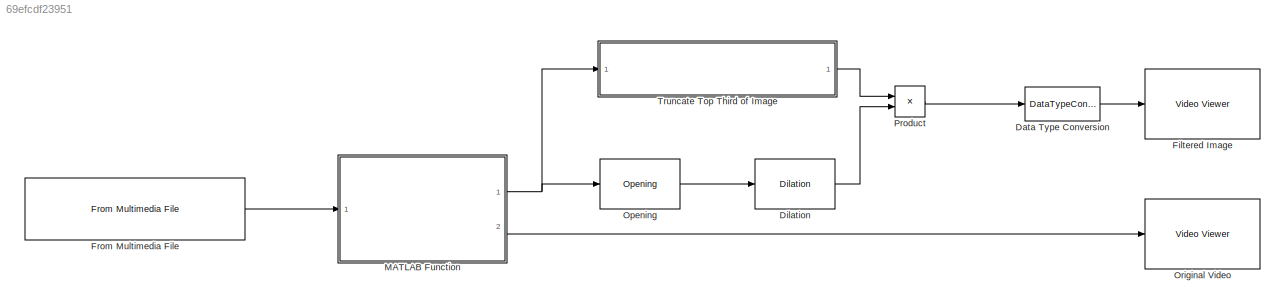
MODEL slx_69efcdf23951
KIND model
CONFIG AbsTol = auto
CONFIG FixedStep = auto
CONFIG MaxStep = auto
CONFIG MinStep = auto
CONFIG RelTol = 1e-3
CONFIG SampleTimeConstraint = Unconstrained
CONFIG Solver = ode45
CONFIG SolverMode = Auto
CONFIG SolverName = ode45
CONFIG StartTime = 0.0
CONFIG StopTime = 10.0
BLOCK [DataTypeConversion] Data Type Conversion
  OutDataTypeStr = boolean
  RndMeth = Floor
  SaturateOnIntegerOverflow = off
BLOCK [Reference] Dilation  REF=visionmorphops/Dilation
  Ports = [1, 1]
  SourceBlock = visionmorphops/Dilation
  SourceType = Dilation
  nhoodsrc = Specify via dialog
  strel = [1 1; 1 1]
BLOCK [Reference] Filtered Image  REF=visionsinks/Video Viewer
  AxisZoom = on
  DefaultConfigurationName = vipscopes.VideoViewerScopeCfg
  FigPos = [962 1037 958 929]
  OpenAtMdlStart = on
  Ports = [1]
  SourceBlock = visionsinks/Video Viewer
  SourceType = Video Viewer
  UserDataPersistent = on
  colormapValue = gray(256)
  imagePorts = One multidimensional signal
  inputType = Obsolete7b
  maxInputVal = 255
  minInputVal = 0
  specRange = off
  trueSizedOnce = off
  useColorMap = off
BLOCK [Reference] From Multimedia File  REF=dspvision/From Multimedia File
  Ports = [0, 1]
  SourceBlock = dspvision/From Multimedia File
  SourceType = From Multimedia File
  audioDataType = int16
  audioFrameSize = 1024
  colorVideoFormat = One multidimensional signal
  computeAudioFrameSize = off
  dataOrg = Column-major
  fourcc = RGB
  inheritSampleTime = on
  inputFilename = <path>
  isIntensityVideo = off
  loop = on
  noAudioOutput = off
  numPlays = inf
  outSamplingMode = Sample based
  outputEOF = off
  outputStreams = Video only
  userDefinedSampleTime = 1/30
  videoDataType = single
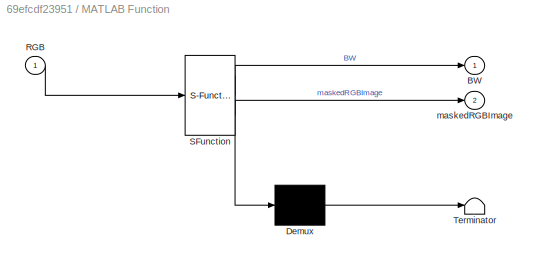
BLOCK [SubSystem] MATLAB Function
  ErrorFcn = Stateflow.Translate.translate
  PermitHierarchicalResolution = ExplicitOnly
  Ports = [1, 2]
  RequestExecContextInheritance = off
  SFBlockType = MATLAB Function
  TreatAsAtomicUnit = on
BLOCK [Demux] MATLAB Function/ Demux 
  Outputs = 1
  Ports = [1, 1]
BLOCK [S-Function] MATLAB Function/ SFunction 
  EnableBusSupport = on
  FunctionName = sf_sfun
  PortCounts = [1 3]
  Ports = [1, 3]
  Tag = Stateflow S-Function Simulink_threshold 2
BLOCK [Terminator] MATLAB Function/ Terminator 
BLOCK [Outport] MATLAB Function/BW
  IconDisplay = Port number
BLOCK [Inport] MATLAB Function/RGB
  IconDisplay = Port number
BLOCK [Outport] MATLAB Function/maskedRGBImage
  IconDisplay = Port number
  Port = 2
BLOCK [Reference] Opening  REF=visionmorphops/Opening
  Ports = [1, 1]
  SourceBlock = visionmorphops/Opening
  SourceType = Opening
  nhoodsrc = Specify via dialog
  strel = strel('disk', 1)
BLOCK [Reference] Original Video  REF=visionsinks/Video Viewer
  AxisZoom = on
  DefaultConfigurationName = vipscopes.VideoViewerScopeCfg
  FigPos = [2 1037 958 929]
  OpenAtMdlStart = on
  Ports = [1]
  SourceBlock = visionsinks/Video Viewer
  SourceType = Video Viewer
  UserDataPersistent = on
  colormapValue = jet(256)
  imagePorts = One multidimensional signal
  inputType = Obsolete7b
  maxInputVal = 255
  minInputVal = 0
  specRange = off
  trueSizedOnce = off
  useColorMap = off
BLOCK [Product] Product
  InputSameDT = off
  OutDataTypeStr = Inherit: Inherit via internal rule
  Ports = [2, 1]
  RndMeth = Floor
  SaturateOnIntegerOverflow = off
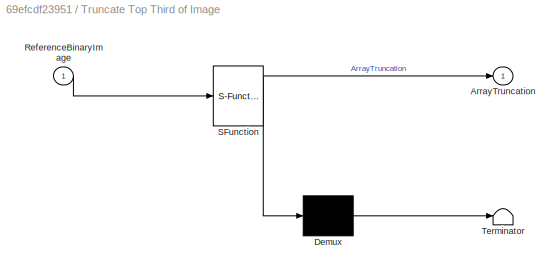
BLOCK [SubSystem] Truncate Top Third of Image
  ErrorFcn = Stateflow.Translate.translate
  PermitHierarchicalResolution = ExplicitOnly
  Ports = [1, 1]
  RequestExecContextInheritance = off
  SFBlockType = MATLAB Function
  TreatAsAtomicUnit = on
BLOCK [Demux] Truncate Top Third of Image/ Demux 
  Outputs = 1
  Ports = [1, 1]
BLOCK [S-Function] Truncate Top Third of Image/ SFunction 
  EnableBusSupport = on
  FunctionName = sf_sfun
  PortCounts = [1 2]
  Ports = [1, 2]
  Tag = Stateflow S-Function Simulink_threshold 1
BLOCK [Terminator] Truncate Top Third of Image/ Terminator 
BLOCK [Outport] Truncate Top Third of Image/ArrayTruncation
  IconDisplay = Port number
BLOCK [Inport] Truncate Top Third of Image/ReferenceBinaryImage
  IconDisplay = Port number
LINE Data Type Conversion:1 -> Filtered Image:1
LINE Dilation:1 -> Product:2
LINE From Multimedia File:1 -> MATLAB Function:1
NET MATLAB Function:1 -> Opening:1, Truncate Top Third of Image:1
LINE MATLAB Function:2 -> Original Video:1
LINE Opening:1 -> Dilation:1
LINE Product:1 -> Data Type Conversion:1
LINE Truncate Top Third of Image:1 -> Product:1
note: NET lines group one-source signal fan-out (src -> all destinations, sorted); 1:1 wires keep LINE
CHART Truncate Top Third of Image states=1 transitions=1
  STATE_LABEL 'eML_blk_kernel()'
  STATE_LABEL 'SCRIPT:\nfunction ArrayTruncation = fcn(ReferenceBinaryImage)\n\n%This function truncates the image you are processing by O variable fraction.\n% In this case, O was set to 3 and deletes the first third of the flattened\n% 2D array.\n\nO = 3/10; %1/3 1/2 4/10\n\n[x,y] = size(ReferenceBinaryImage);\nmatrix = zeros(x, y);\n\nfor i = x*O:x\n    for j = 1:y\n        matrix(i,j) = 1;\n    end\nend\n\nArrayTruncation = m...<+11ch>'
CHART MATLAB Function states=1 transitions=1
  STATE_LABEL 'eML_blk_kernel()'
  STATE_LABEL 'SCRIPT:\nfunction [BW,maskedRGBImage] = createMask(RGB)\n\n% Outputs a BW (binary image) and maskedRGBImage (threshold set using the\n% colorThresholder app) from a image/video frame.\n\n%createMask  Threshold RGB image using auto-generated code from colorThresholder app.\n%  [BW,MASKEDRGBIMAGE] = createMask(RGB) thresholds image RGB using\n%  auto-generated code from the colorThresholder App. The colorsp...<+2013ch>'
note: 1 file-system path scrubbed to <path> (not preserved elsewhere — flat text is the only slx artifact)
